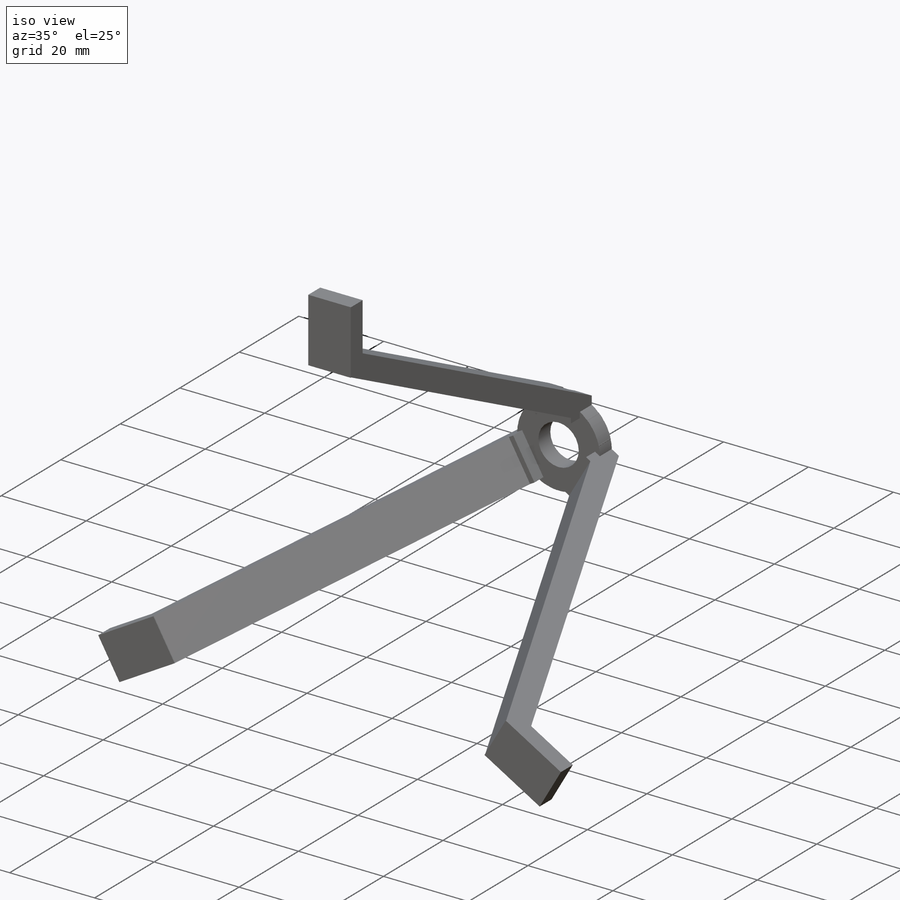
[diagram: iso view]
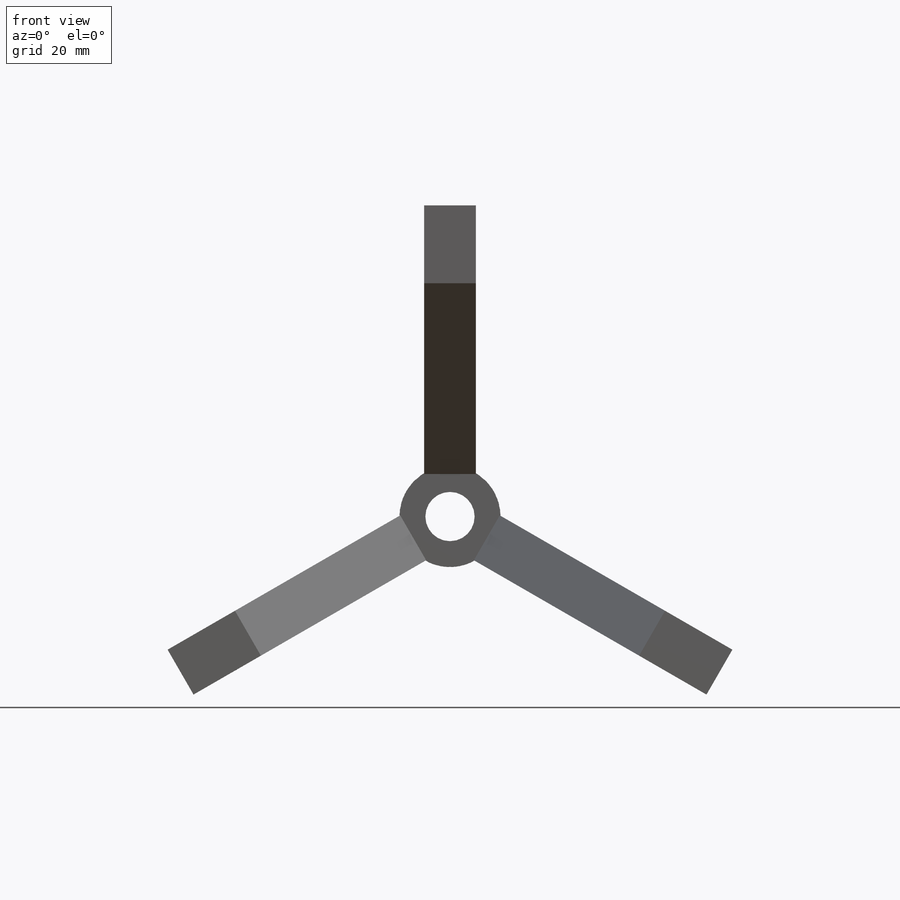
[diagram: front view]
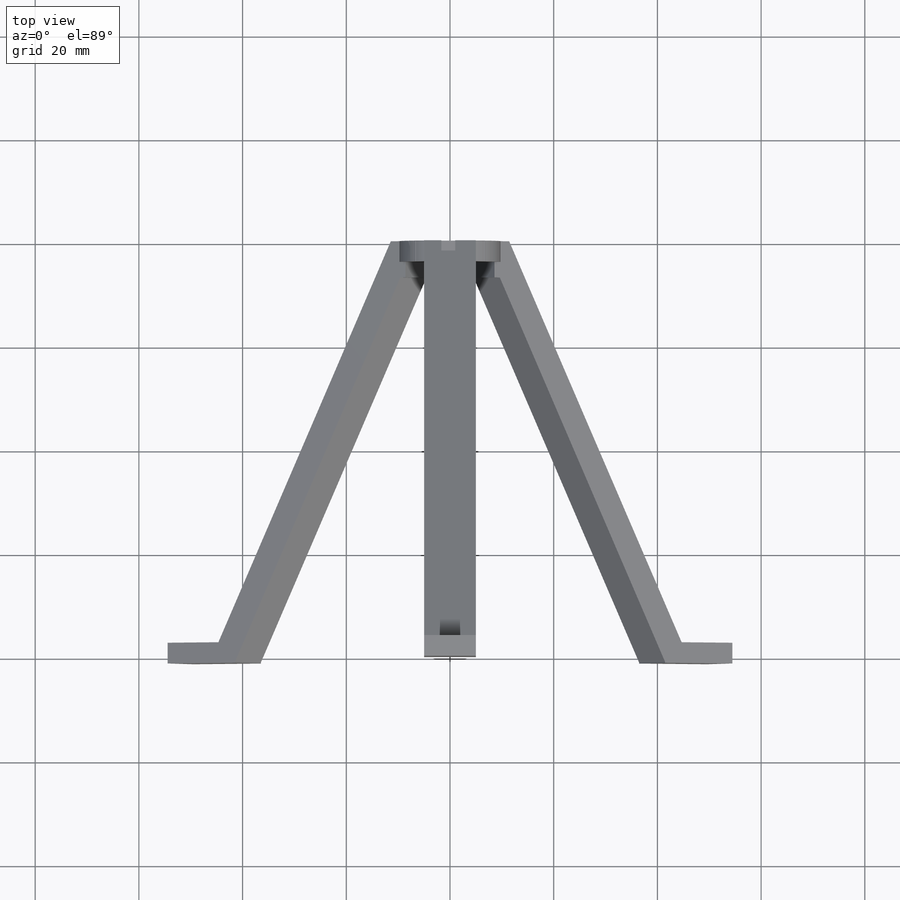
[diagram: top view]
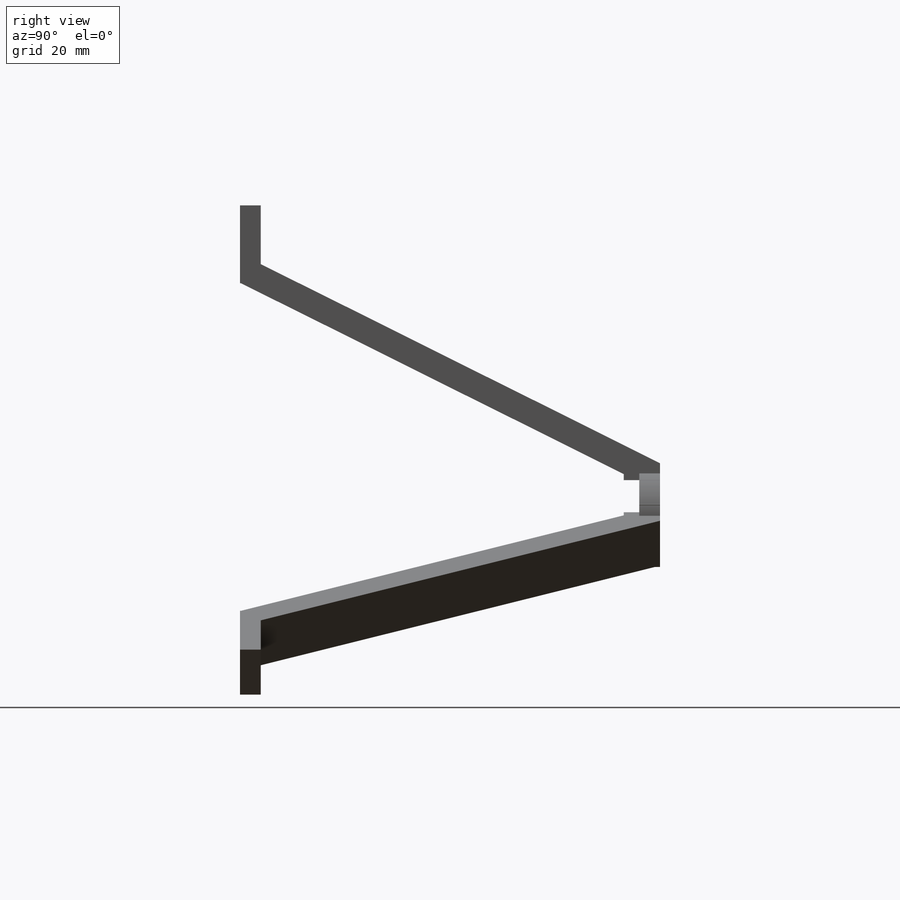
[diagram: right view]
SOLIDWORKS PART (.sldprt)
format: sldprt  version: not decoded by parser v0  size: 240,128 bytes
history: native  units: mm
features: sketch x6, extrude x4, plane x2, material x1, pattern_circular x1, cut_extrude x1 (+13 scaffold rows collapsed)
feature tree (28):
  scaffold x13  (default folders/planes/origin — collapsed)
  material  "Material <not specified>"
  sketch  "Sketch1"  dims[D1=9.5mm D2=19.5mm]
  extrude  "Boss-Extrude1"  Depth=4mm
  sketch  "Sketch2"  dims[D1=10.0mm D2=5.0mm]
  extrude  "Boss-Extrude3"  Depth=3mm
  plane  "Plane2"  Offset=77mm
  sketch  "Sketch6"  dims[D1=45.0mm D2=15.0mm D3=5.0mm D4=10.0mm]
  extrude  "Boss-Extrude4"  Depth=4mm
  plane  "Plane3"  Offset=0mm
  sketch  "Sketch7"  dims[D1=5.0mm D2=~22.385364mm]
  extrude  "Boss-Extrude5"  Depth=10mm
  pattern_circular  "CirPattern2"  Count=3 Angle=120deg
  sketch  "Sketch8"
  cut_extrude  "Cut-Extrude2"  Depth=2mm
  sketch  "Sketch9"  dims[c1.D1=~19.593045mm c2.D1=~1.75313deg c2.D2=~19.593045mm]
decode coverage: 11 of 12 modeling features carry decoded parameters
note: ~ marks probable driven/reference dimensions
note: suppression state not decoded; provenance and decode notes live in map.json
